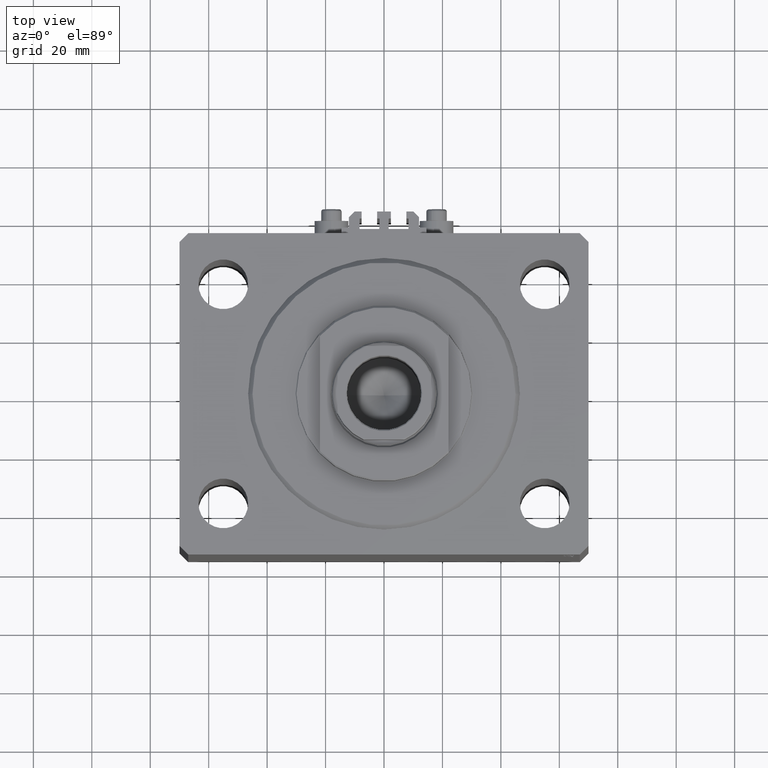
[diagram: clean part render]
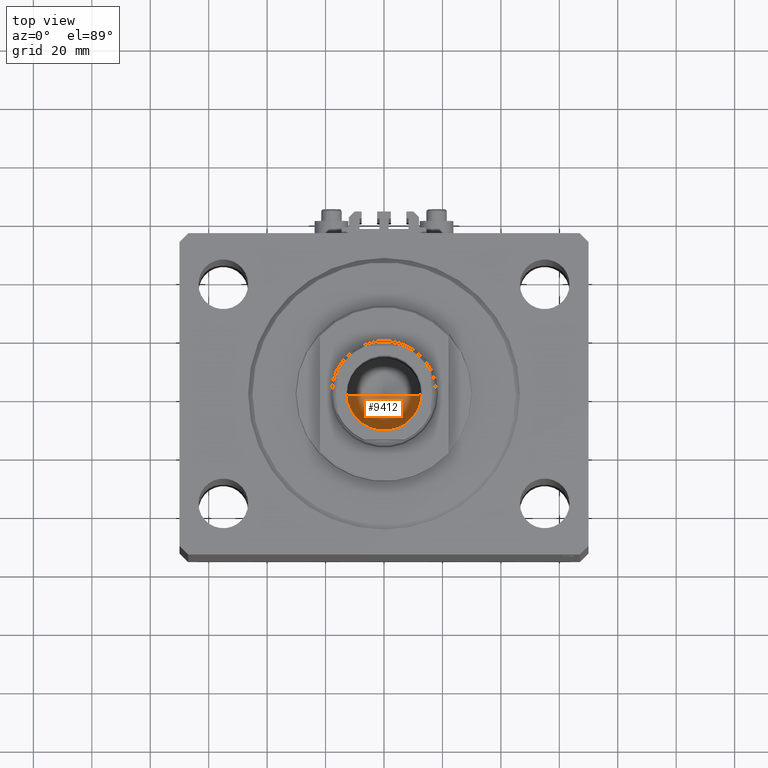
[diagram: same view with one face highlighted and labeled with its STEP entity id]
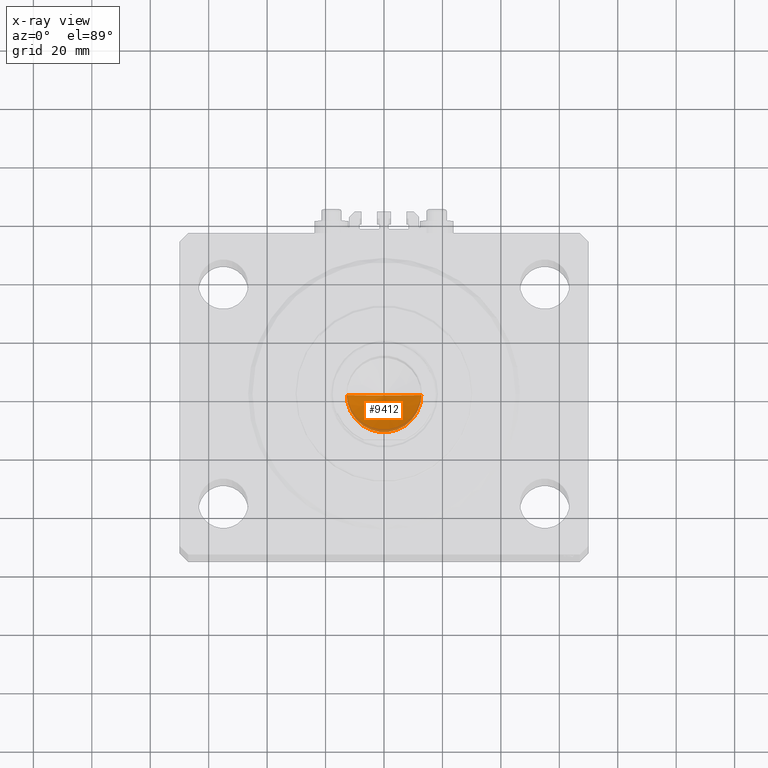
[diagram: x-ray of the same camera — body ghosted, the highlighted face saturated]
A machine part, top view. The second image highlights one B-rep face of the part: STEP entity #9412.
The next image is the same camera in x-ray: the body ghosted, the highlighted face saturated — about 8% of this face is hidden behind the body in this view.
In plain terms, the highlighted conical surface has half-angle 59 deg.
Its self-contained STEP definition (entity closure, byte-faithful):
#675 = EDGE_CURVE ( 'NONE', #7596, #6018, #44072, .T. ) ;
#1702 = CARTESIAN_POINT ( 'NONE',  ( 0.000000000000000000, 0.000000000000000000, 100.0000000000000142 ) ) ;
#2662 = ORIENTED_EDGE ( 'NONE', *, *, #675, .T. ) ;
#6018 = VERTEX_POINT ( 'NONE', #16279 ) ;
#6958 = EDGE_LOOP ( 'NONE', ( #27082, #23681, #2662 ) ) ;
#7088 = LINE ( 'NONE', #7321, #14378 ) ;
#7321 = CARTESIAN_POINT ( 'NONE',  ( 12.74999999999999112, 0.000000000000000000, 100.0000000000000142 ) ) ;
#7367 = DIRECTION ( 'NONE',  ( -0.8571673007021117785, 1.049727191138617956E-16, 0.5150380749100550437 ) ) ;
#7596 = VERTEX_POINT ( 'NONE', #29289 ) ;
#7674 = AXIS2_PLACEMENT_3D ( 'NONE', #43490, #28418, #17408 ) ;
#9412 = ADVANCED_FACE ( 'NONE', ( #28878 ), #46680, .F. ) ;
#10949 = LINE ( 'NONE', #40146, #18638 ) ;
#14378 = VECTOR ( 'NONE', #15219, 1000.000000000000000 ) ;
#15219 = DIRECTION ( 'NONE',  ( 0.8571673007021117785, 0.000000000000000000, 0.5150380749100550437 ) ) ;
#16279 = CARTESIAN_POINT ( 'NONE',  ( 12.74999999999999112, 0.000000000000000000, 100.0000000000000142 ) ) ;
#17408 = DIRECTION ( 'NONE',  ( 1.000000000000000000, 0.000000000000000000, 0.000000000000000000 ) ) ;
#18638 = VECTOR ( 'NONE', #7367, 1000.000000000000000 ) ;
#20268 = VERTEX_POINT ( 'NONE', #41515 ) ;
#22121 = EDGE_CURVE ( 'NONE', #20268, #7596, #10949, .T. ) ;
#23681 = ORIENTED_EDGE ( 'NONE', *, *, #22121, .T. ) ;
#27082 = ORIENTED_EDGE ( 'NONE', *, *, #46126, .F. ) ;
#28418 = DIRECTION ( 'NONE',  ( -0.000000000000000000, -0.000000000000000000, 1.000000000000000000 ) ) ;
#28878 = FACE_OUTER_BOUND ( 'NONE', #6958, .T. ) ;
#29289 = CARTESIAN_POINT ( 'NONE',  ( -12.74999999999999112, 1.561424668912874125E-15, 100.0000000000000142 ) ) ;
#37603 = DIRECTION ( 'NONE',  ( 1.000000000000000000, 0.000000000000000000, 0.000000000000000000 ) ) ;
#40146 = CARTESIAN_POINT ( 'NONE',  ( -12.74999999999999112, 1.561424668912874125E-15, 100.0000000000000142 ) ) ;
#40232 = AXIS2_PLACEMENT_3D ( 'NONE', #1702, #44789, #37603 ) ;
#41515 = CARTESIAN_POINT ( 'NONE',  ( -1.307202896762960287E-14, 0.000000000000000000, 92.33902710739862130 ) ) ;
#43490 = CARTESIAN_POINT ( 'NONE',  ( 0.000000000000000000, 0.000000000000000000, 100.0000000000000142 ) ) ;
#44072 = CIRCLE ( 'NONE', #40232, 12.74999999999999112 ) ;
#44789 = DIRECTION ( 'NONE',  ( -0.000000000000000000, -0.000000000000000000, 1.000000000000000000 ) ) ;
#46126 = EDGE_CURVE ( 'NONE', #20268, #6018, #7088, .T. ) ;
#46680 = CONICAL_SURFACE ( 'NONE', #7674, 12.74999999999999112, 1.029744258676653423 ) ;